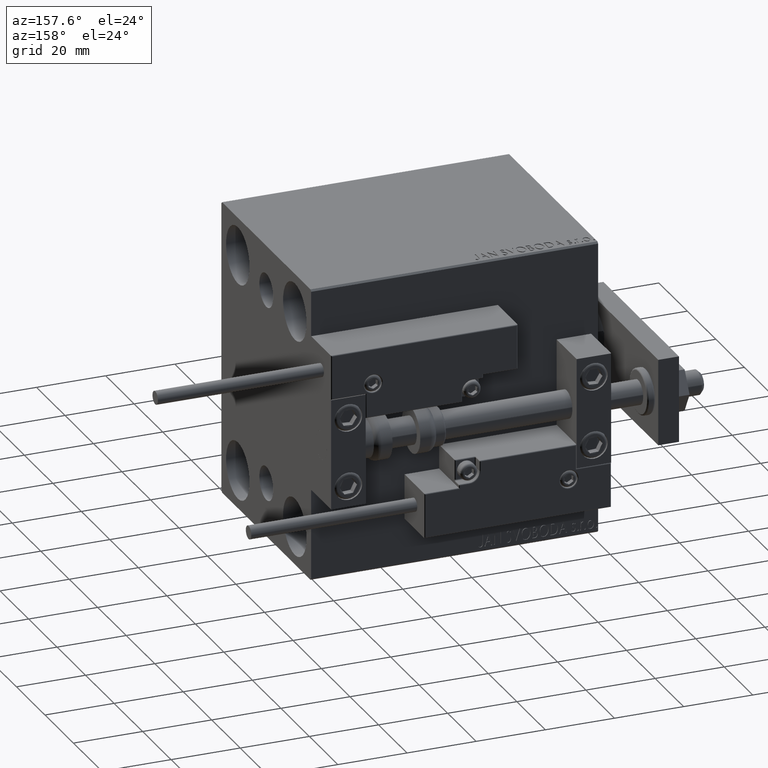
[diagram: clean part render]
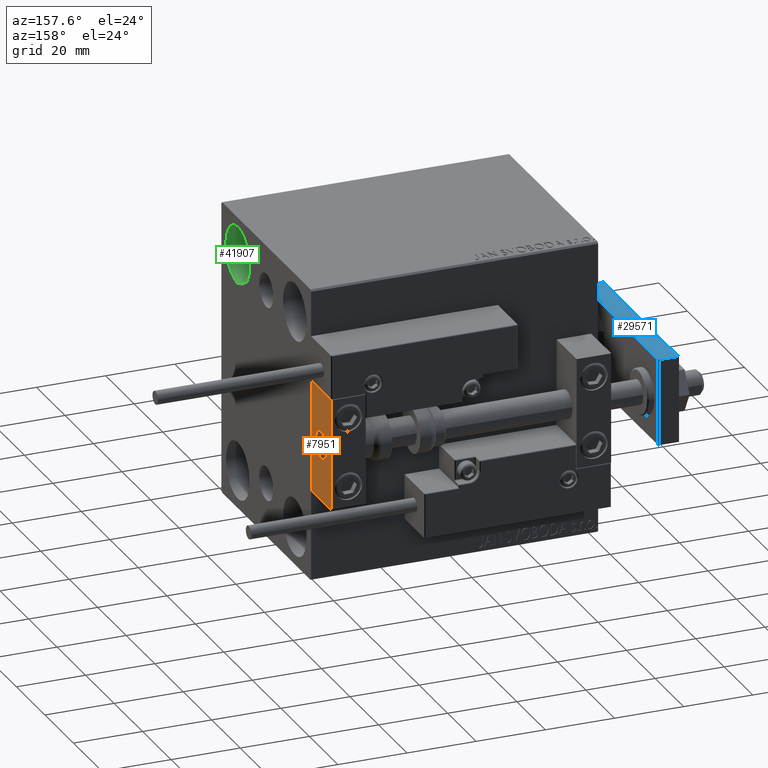
[diagram: same view with three faces highlighted in distinct colors, each labeled with its STEP entity id]
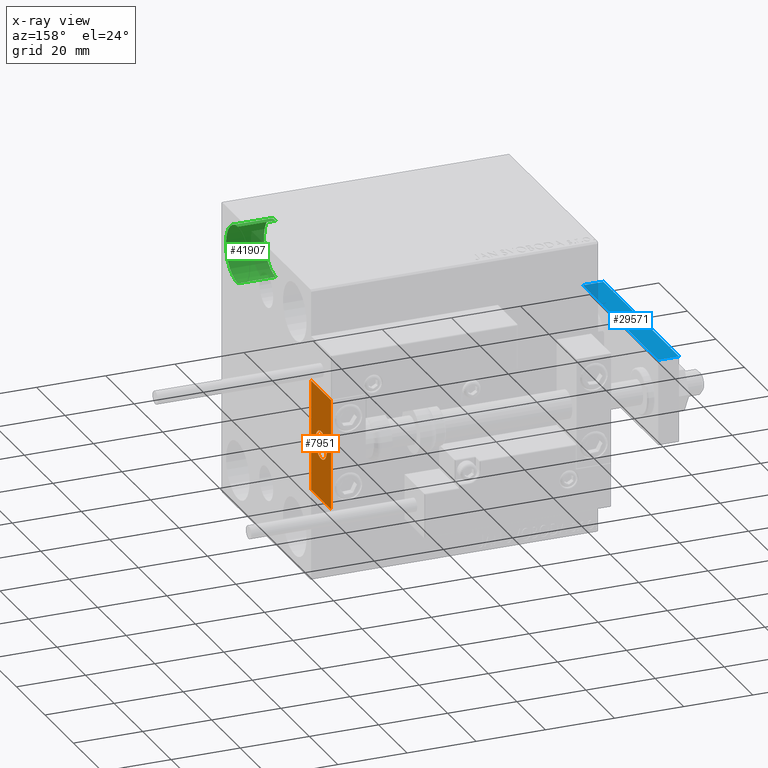
[diagram: x-ray of the same camera — body ghosted, the three highlighted faces saturated]
A machine part, auxiliary view with three faces highlighted in distinct colors.
The next image is the same camera in x-ray (body ghosted, the three faces saturated) — at least one of them is partly hidden behind the body in this view.
Their STEP definitions:

[orange] entity #7951 — the highlighted planar face has unit normal (-1, 0, 0).
#402 = LINE ( 'NONE', #19176, #10239 ) ;
#1556 = DIRECTION ( 'NONE',  ( -1.000000000000000000, 0.000000000000000000, -0.000000000000000000 ) ) ;
#3951 = ORIENTED_EDGE ( 'NONE', *, *, #13224, .F. ) ;
#4327 = ORIENTED_EDGE ( 'NONE', *, *, #24092, .T. ) ;
#5787 = AXIS2_PLACEMENT_3D ( 'NONE', #39557, #1556, #35778 ) ;
#5962 = VERTEX_POINT ( 'NONE', #38008 ) ;
#6366 = AXIS2_PLACEMENT_3D ( 'NONE', #49327, #40717, #18712 ) ;
#7019 = DIRECTION ( 'NONE',  ( 0.000000000000000000, 0.000000000000000000, 1.000000000000000000 ) ) ;
#7273 = CARTESIAN_POINT ( 'NONE',  ( 10.00000000000000000, 0.000000000000000000, 0.000000000000000000 ) ) ;
#7951 = ADVANCED_FACE ( 'NONE', ( #44347, #24138 ), #9685, .F. ) ;
#8078 = CARTESIAN_POINT ( 'NONE',  ( 10.00000000000000000, -7.000000000000000000, -16.00000000000000711 ) ) ;
#9596 = VECTOR ( 'NONE', #32641, 1000.000000000000000 ) ;
#9685 = PLANE ( 'NONE',  #5787 ) ;
#10239 = VECTOR ( 'NONE', #46253, 1000.000000000000000 ) ;
#11448 = VERTEX_POINT ( 'NONE', #39538 ) ;
#12599 = EDGE_LOOP ( 'NONE', ( #33045, #27867 ) ) ;
#12689 = LINE ( 'NONE', #28145, #33836 ) ;
#13224 = EDGE_CURVE ( 'NONE', #5962, #43249, #47443, .T. ) ;
#13392 = CARTESIAN_POINT ( 'NONE',  ( 10.00000000000000000, 0.000000000000000000, 4.000000000000000000 ) ) ;
#14988 = ORIENTED_EDGE ( 'NONE', *, *, #42991, .F. ) ;
#15840 = DIRECTION ( 'NONE',  ( 0.000000000000000000, 0.000000000000000000, -1.000000000000000000 ) ) ;
#16292 = AXIS2_PLACEMENT_3D ( 'NONE', #7273, #45495, #7019 ) ;
#17196 = CARTESIAN_POINT ( 'NONE',  ( 10.00000000000000000, 7.000000000000000000, -16.00000000000000711 ) ) ;
#18712 = DIRECTION ( 'NONE',  ( 0.000000000000000000, 0.000000000000000000, 1.000000000000000000 ) ) ;
#19176 = CARTESIAN_POINT ( 'NONE',  ( 10.00000000000000000, 7.000000000000000000, 15.99999999999999289 ) ) ;
#20319 = DIRECTION ( 'NONE',  ( 0.000000000000000000, 0.000000000000000000, -1.000000000000000000 ) ) ;
#23948 = CARTESIAN_POINT ( 'NONE',  ( 10.00000000000000000, 7.000000000000000000, 15.99999999999999289 ) ) ;
#24092 = EDGE_CURVE ( 'NONE', #5962, #29906, #402, .T. ) ;
#24138 = FACE_OUTER_BOUND ( 'NONE', #37436, .T. ) ;
#26029 = CIRCLE ( 'NONE', #16292, 4.000000000000000000 ) ;
#27052 = ORIENTED_EDGE ( 'NONE', *, *, #32844, .T. ) ;
#27867 = ORIENTED_EDGE ( 'NONE', *, *, #34211, .T. ) ;
#28145 = CARTESIAN_POINT ( 'NONE',  ( 10.00000000000000000, -7.000000000000000000, 15.99999999999999289 ) ) ;
#29906 = VERTEX_POINT ( 'NONE', #36804 ) ;
#30135 = VERTEX_POINT ( 'NONE', #13392 ) ;
#32641 = DIRECTION ( 'NONE',  ( 0.000000000000000000, -1.000000000000000000, 0.000000000000000000 ) ) ;
#32654 = VECTOR ( 'NONE', #15840, 1000.000000000000000 ) ;
#32844 = EDGE_CURVE ( 'NONE', #29906, #35667, #12689, .T. ) ;
#33045 = ORIENTED_EDGE ( 'NONE', *, *, #41071, .T. ) ;
#33836 = VECTOR ( 'NONE', #20319, 1000.000000000000000 ) ;
#34211 = EDGE_CURVE ( 'NONE', #11448, #30135, #34696, .T. ) ;
#34696 = CIRCLE ( 'NONE', #6366, 4.000000000000000000 ) ;
#35667 = VERTEX_POINT ( 'NONE', #8078 ) ;
#35778 = DIRECTION ( 'NONE',  ( -0.000000000000000000, 0.000000000000000000, 1.000000000000000000 ) ) ;
#36677 = LINE ( 'NONE', #17196, #9596 ) ;
#36804 = CARTESIAN_POINT ( 'NONE',  ( 10.00000000000000000, -7.000000000000000000, 15.99999999999999289 ) ) ;
#37436 = EDGE_LOOP ( 'NONE', ( #27052, #14988, #3951, #4327 ) ) ;
#38008 = CARTESIAN_POINT ( 'NONE',  ( 10.00000000000000000, 7.000000000000000000, 15.99999999999999289 ) ) ;
#39538 = CARTESIAN_POINT ( 'NONE',  ( 10.00000000000000000, 4.898587196589412829E-16, -4.000000000000000000 ) ) ;
#39557 = CARTESIAN_POINT ( 'NONE',  ( 10.00000000000000000, 0.000000000000000000, 0.000000000000000000 ) ) ;
#40717 = DIRECTION ( 'NONE',  ( -1.000000000000000000, 0.000000000000000000, 0.000000000000000000 ) ) ;
#41071 = EDGE_CURVE ( 'NONE', #30135, #11448, #26029, .T. ) ;
#42991 = EDGE_CURVE ( 'NONE', #43249, #35667, #36677, .T. ) ;
#43249 = VERTEX_POINT ( 'NONE', #48026 ) ;
#44347 = FACE_BOUND ( 'NONE', #12599, .T. ) ;
#45495 = DIRECTION ( 'NONE',  ( -1.000000000000000000, 0.000000000000000000, 0.000000000000000000 ) ) ;
#46253 = DIRECTION ( 'NONE',  ( 0.000000000000000000, -1.000000000000000000, 0.000000000000000000 ) ) ;
#47443 = LINE ( 'NONE', #23948, #32654 ) ;
#48026 = CARTESIAN_POINT ( 'NONE',  ( 10.00000000000000000, 7.000000000000000000, -16.00000000000000711 ) ) ;
#49327 = CARTESIAN_POINT ( 'NONE',  ( 10.00000000000000000, 0.000000000000000000, 0.000000000000000000 ) ) ;

[blue] entity #29571 — the highlighted planar face has unit normal (0, 0, -1).
#114 = LINE ( 'NONE', #20133, #19233 ) ;
#1962 = VECTOR ( 'NONE', #49176, 1000.000000000000000 ) ;
#4466 = DIRECTION ( 'NONE',  ( -0.000000000000000000, -0.000000000000000000, -1.000000000000000000 ) ) ;
#5344 = PLANE ( 'NONE',  #22530 ) ;
#6990 = CARTESIAN_POINT ( 'NONE',  ( 12.50000000000000355, 7.000000000000006217, 6.000000000000000000 ) ) ;
#8628 = VECTOR ( 'NONE', #4466, 1000.000000000000000 ) ;
#11042 = LINE ( 'NONE', #6990, #43151 ) ;
#13852 = EDGE_CURVE ( 'NONE', #29751, #28123, #11042, .T. ) ;
#19233 = VECTOR ( 'NONE', #46694, 1000.000000000000000 ) ;
#19691 = EDGE_CURVE ( 'NONE', #28123, #41467, #49688, .T. ) ;
#20133 = CARTESIAN_POINT ( 'NONE',  ( 12.50000000000000355, 4.814824860968089633E-32, 6.000000000000000000 ) ) ;
#22117 = CARTESIAN_POINT ( 'NONE',  ( 12.50000000000000355, 4.814824860968089633E-32, 0.000000000000000000 ) ) ;
#22530 = AXIS2_PLACEMENT_3D ( 'NONE', #48375, #28673, #47882 ) ;
#23749 = CARTESIAN_POINT ( 'NONE',  ( 12.50000000000000355, 60.00000000000000000, 6.000000000000000000 ) ) ;
#24026 = EDGE_LOOP ( 'NONE', ( #39529, #31114, #40051, #25824 ) ) ;
#25015 = EDGE_CURVE ( 'NONE', #44268, #41467, #39403, .T. ) ;
#25824 = ORIENTED_EDGE ( 'NONE', *, *, #25015, .F. ) ;
#28123 = VERTEX_POINT ( 'NONE', #34819 ) ;
#28143 = EDGE_CURVE ( 'NONE', #29751, #44268, #114, .T. ) ;
#28673 = DIRECTION ( 'NONE',  ( -1.000000000000000000, 0.000000000000000000, 0.000000000000000000 ) ) ;
#29571 = ADVANCED_FACE ( 'NONE', ( #44078 ), #5344, .F. ) ;
#29751 = VERTEX_POINT ( 'NONE', #42885 ) ;
#31114 = ORIENTED_EDGE ( 'NONE', *, *, #13852, .T. ) ;
#33103 = CARTESIAN_POINT ( 'NONE',  ( 12.50000000000000355, 60.00000000000000000, 6.000000000000000000 ) ) ;
#34819 = CARTESIAN_POINT ( 'NONE',  ( 12.50000000000000355, 7.000000000000006217, 0.000000000000000000 ) ) ;
#38585 = CARTESIAN_POINT ( 'NONE',  ( 12.50000000000000355, 60.00000000000000000, 0.000000000000000000 ) ) ;
#39403 = LINE ( 'NONE', #23749, #8628 ) ;
#39529 = ORIENTED_EDGE ( 'NONE', *, *, #28143, .F. ) ;
#40051 = ORIENTED_EDGE ( 'NONE', *, *, #19691, .T. ) ;
#41467 = VERTEX_POINT ( 'NONE', #38585 ) ;
#42885 = CARTESIAN_POINT ( 'NONE',  ( 12.50000000000000355, 7.000000000000006217, 6.000000000000000000 ) ) ;
#43151 = VECTOR ( 'NONE', #45203, 1000.000000000000000 ) ;
#44078 = FACE_OUTER_BOUND ( 'NONE', #24026, .T. ) ;
#44268 = VERTEX_POINT ( 'NONE', #33103 ) ;
#45203 = DIRECTION ( 'NONE',  ( 0.000000000000000000, 0.000000000000000000, -1.000000000000000000 ) ) ;
#46694 = DIRECTION ( 'NONE',  ( 0.000000000000000000, 1.000000000000000000, 0.000000000000000000 ) ) ;
#47882 = DIRECTION ( 'NONE',  ( 0.000000000000000000, 0.000000000000000000, 1.000000000000000000 ) ) ;
#48375 = CARTESIAN_POINT ( 'NONE',  ( 12.50000000000000355, 4.814824860968089633E-32, 6.000000000000000000 ) ) ;
#49176 = DIRECTION ( 'NONE',  ( 0.000000000000000000, 1.000000000000000000, 0.000000000000000000 ) ) ;
#49688 = LINE ( 'NONE', #22117, #1962 ) ;

[green] entity #41907 — the highlighted cylindrical surface (edge-blend (fillet) strip) has radius 8.25 mm, axis along (1, 0, 0).
#2005 = CARTESIAN_POINT ( 'NONE',  ( 72.00000000000001421, -19.99999999999999645, 31.50000000000000000 ) ) ;
#5327 = CYLINDRICAL_SURFACE ( 'NONE', #24525, 8.249999999999996447 ) ;
#5550 = DIRECTION ( 'NONE',  ( 0.000000000000000000, 0.000000000000000000, 1.000000000000000000 ) ) ;
#6901 = VERTEX_POINT ( 'NONE', #43516 ) ;
#7633 = AXIS2_PLACEMENT_3D ( 'NONE', #2005, #43783, #5550 ) ;
#9827 = CARTESIAN_POINT ( 'NONE',  ( 72.00000000000001421, -19.99999999999999645, 23.25000000000000355 ) ) ;
#11347 = VERTEX_POINT ( 'NONE', #49706 ) ;
#13439 = CARTESIAN_POINT ( 'NONE',  ( 72.00000000000001421, -19.99999999999999645, 31.50000000000000000 ) ) ;
#14306 = ORIENTED_EDGE ( 'NONE', *, *, #34265, .F. ) ;
#14392 = DIRECTION ( 'NONE',  ( 0.000000000000000000, 0.000000000000000000, 1.000000000000000000 ) ) ;
#15446 = VERTEX_POINT ( 'NONE', #40497 ) ;
#15455 = EDGE_CURVE ( 'NONE', #15446, #6901, #40754, .T. ) ;
#17956 = EDGE_LOOP ( 'NONE', ( #47358, #35820, #14306, #48869 ) ) ;
#23332 = VECTOR ( 'NONE', #47368, 1000.000000000000000 ) ;
#24525 = AXIS2_PLACEMENT_3D ( 'NONE', #13439, #40011, #25599 ) ;
#25599 = DIRECTION ( 'NONE',  ( 0.000000000000000000, 0.000000000000000000, -1.000000000000000000 ) ) ;
#25766 = AXIS2_PLACEMENT_3D ( 'NONE', #30113, #34159, #14392 ) ;
#25805 = CIRCLE ( 'NONE', #25766, 8.249999999999992895 ) ;
#26469 = VERTEX_POINT ( 'NONE', #30227 ) ;
#30113 = CARTESIAN_POINT ( 'NONE',  ( 83.00000000000000000, -19.99999999999999645, 31.50000000000000000 ) ) ;
#30227 = CARTESIAN_POINT ( 'NONE',  ( 83.00000000000000000, -19.99999999999999645, 23.25000000000000355 ) ) ;
#32839 = EDGE_CURVE ( 'NONE', #6901, #11347, #43309, .T. ) ;
#33903 = VECTOR ( 'NONE', #37151, 1000.000000000000000 ) ;
#34159 = DIRECTION ( 'NONE',  ( -1.000000000000000000, -0.000000000000000000, -0.000000000000000000 ) ) ;
#34265 = EDGE_CURVE ( 'NONE', #26469, #11347, #25805, .T. ) ;
#35820 = ORIENTED_EDGE ( 'NONE', *, *, #32839, .T. ) ;
#35829 = EDGE_CURVE ( 'NONE', #15446, #26469, #47791, .T. ) ;
#37151 = DIRECTION ( 'NONE',  ( 1.000000000000000000, -0.000000000000000000, -0.000000000000000000 ) ) ;
#40011 = DIRECTION ( 'NONE',  ( 1.000000000000000000, -0.000000000000000000, -0.000000000000000000 ) ) ;
#40256 = FACE_OUTER_BOUND ( 'NONE', #17956, .T. ) ;
#40497 = CARTESIAN_POINT ( 'NONE',  ( 72.00000000000001421, -19.99999999999999645, 23.25000000000000355 ) ) ;
#40754 = CIRCLE ( 'NONE', #7633, 8.249999999999992895 ) ;
#41907 = ADVANCED_FACE ( 'NONE', ( #40256 ), #5327, .F. ) ;
#43309 = LINE ( 'NONE', #43549, #23332 ) ;
#43516 = CARTESIAN_POINT ( 'NONE',  ( 72.00000000000001421, -19.99999999999999645, 39.74999999999999289 ) ) ;
#43549 = CARTESIAN_POINT ( 'NONE',  ( 72.00000000000001421, -19.99999999999999645, 39.74999999999999289 ) ) ;
#43783 = DIRECTION ( 'NONE',  ( -1.000000000000000000, -0.000000000000000000, -0.000000000000000000 ) ) ;
#47358 = ORIENTED_EDGE ( 'NONE', *, *, #15455, .T. ) ;
#47368 = DIRECTION ( 'NONE',  ( 1.000000000000000000, -0.000000000000000000, -0.000000000000000000 ) ) ;
#47791 = LINE ( 'NONE', #9827, #33903 ) ;
#48869 = ORIENTED_EDGE ( 'NONE', *, *, #35829, .F. ) ;
#49706 = CARTESIAN_POINT ( 'NONE',  ( 83.00000000000000000, -19.99999999999999645, 39.74999999999999289 ) ) ;